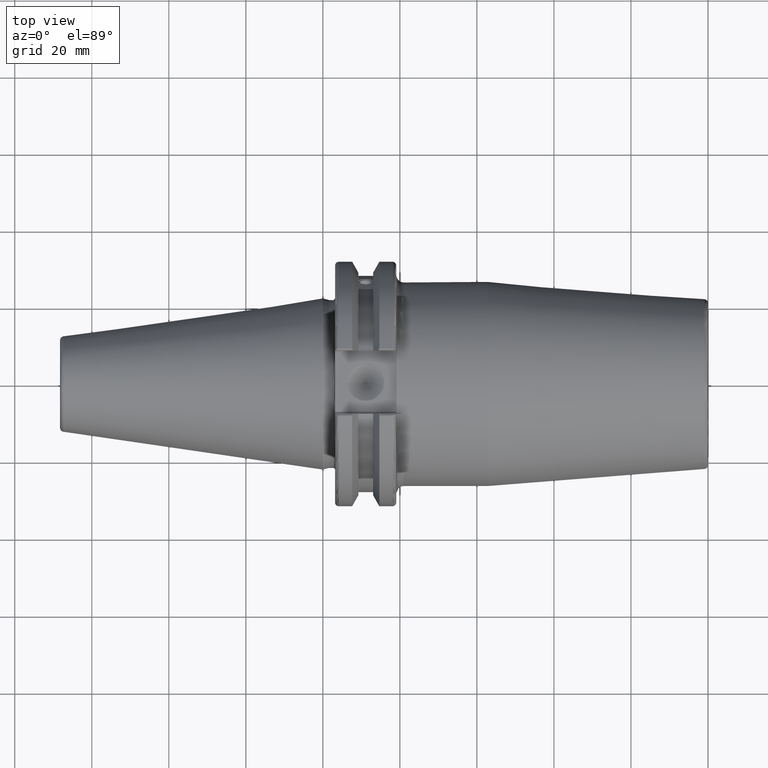
[diagram: clean part render]
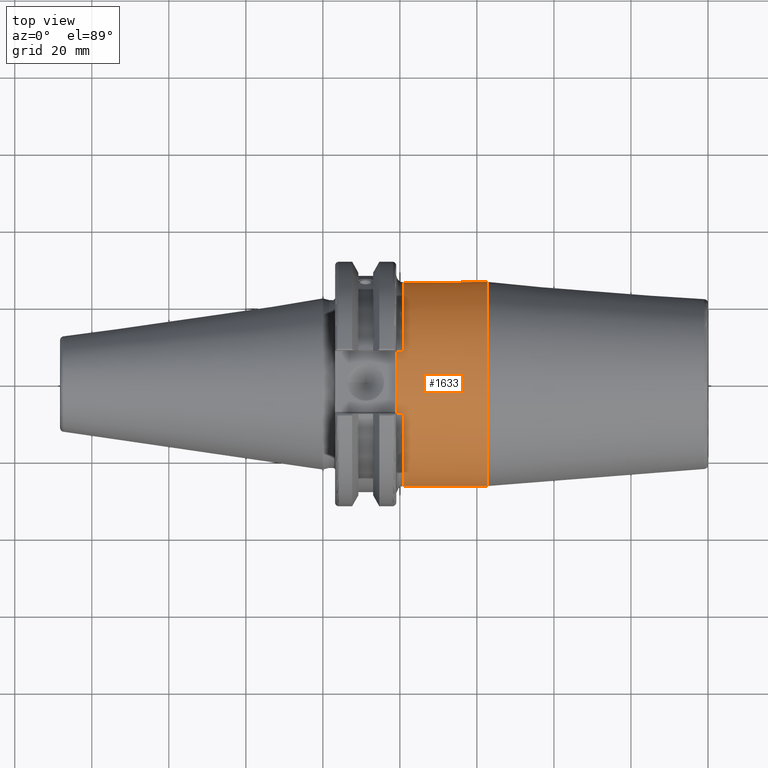
[diagram: same view with one face highlighted and labeled with its STEP entity id]
A machine part, top view. The second image highlights one B-rep face of the part: STEP entity #1633.
In plain terms, the highlighted cylindrical surface (bore or boss wall) has radius 26.5 mm, axis along (1, 0, 0).
Its self-contained STEP definition (entity closure, byte-faithful):
#82=LINE('',#2506,#184);
#83=LINE('',#2508,#185);
#84=LINE('',#2512,#186);
#85=LINE('',#2516,#187);
#86=LINE('',#2519,#188);
#184=VECTOR('',#1991,26.5);
#185=VECTOR('',#1992,10.);
#186=VECTOR('',#1995,10.);
#187=VECTOR('',#1998,10.);
#188=VECTOR('',#2001,10.);
#285=CYLINDRICAL_SURFACE('',#1767,26.5);
#400=FACE_OUTER_BOUND('',#499,.T.);
#499=EDGE_LOOP('',(#1137,#1138,#1139,#1140,#1141,#1142,#1143,#1144,#1145,
#1146,#1147,#1148));
#612=CIRCLE('',#1762,26.5);
#614=CIRCLE('',#1765,26.5);
#615=CIRCLE('',#1766,26.5);
#616=CIRCLE('',#1768,26.5);
#617=CIRCLE('',#1769,26.5);
#618=CIRCLE('',#1770,26.5);
#693=VERTEX_POINT('',#2468);
#697=VERTEX_POINT('',#2484);
#698=VERTEX_POINT('',#2495);
#699=VERTEX_POINT('',#2497);
#700=VERTEX_POINT('',#2507);
#701=VERTEX_POINT('',#2509);
#702=VERTEX_POINT('',#2511);
#703=VERTEX_POINT('',#2513);
#704=VERTEX_POINT('',#2515);
#705=VERTEX_POINT('',#2517);
#865=EDGE_CURVE('',#693,#693,#612,.T.);
#869=EDGE_CURVE('',#697,#698,#614,.T.);
#870=EDGE_CURVE('',#698,#699,#615,.T.);
#872=EDGE_CURVE('',#693,#698,#82,.T.);
#873=EDGE_CURVE('',#697,#700,#83,.T.);
#874=EDGE_CURVE('',#700,#701,#616,.T.);
#875=EDGE_CURVE('',#701,#702,#84,.T.);
#876=EDGE_CURVE('',#703,#702,#617,.T.);
#877=EDGE_CURVE('',#703,#704,#85,.T.);
#878=EDGE_CURVE('',#704,#705,#618,.T.);
#879=EDGE_CURVE('',#705,#699,#86,.T.);
#1137=ORIENTED_EDGE('',*,*,#865,.F.);
#1138=ORIENTED_EDGE('',*,*,#872,.T.);
#1139=ORIENTED_EDGE('',*,*,#869,.F.);
#1140=ORIENTED_EDGE('',*,*,#873,.T.);
#1141=ORIENTED_EDGE('',*,*,#874,.T.);
#1142=ORIENTED_EDGE('',*,*,#875,.T.);
#1143=ORIENTED_EDGE('',*,*,#876,.F.);
#1144=ORIENTED_EDGE('',*,*,#877,.T.);
#1145=ORIENTED_EDGE('',*,*,#878,.T.);
#1146=ORIENTED_EDGE('',*,*,#879,.T.);
#1147=ORIENTED_EDGE('',*,*,#870,.F.);
#1148=ORIENTED_EDGE('',*,*,#872,.F.);
#1633=ADVANCED_FACE('',(#400),#285,.T.);
#1762=AXIS2_PLACEMENT_3D('',#2470,#1979,#1980);
#1765=AXIS2_PLACEMENT_3D('',#2496,#1985,#1986);
#1766=AXIS2_PLACEMENT_3D('',#2498,#1987,#1988);
#1767=AXIS2_PLACEMENT_3D('',#2505,#1989,#1990);
#1768=AXIS2_PLACEMENT_3D('',#2510,#1993,#1994);
#1769=AXIS2_PLACEMENT_3D('',#2514,#1996,#1997);
#1770=AXIS2_PLACEMENT_3D('',#2518,#1999,#2000);
#1979=DIRECTION('center_axis',(1.,0.,0.));
#1980=DIRECTION('ref_axis',(0.,0.,-1.));
#1985=DIRECTION('center_axis',(-1.,0.,0.));
#1986=DIRECTION('ref_axis',(0.,-0.999990043367962,0.00446241693951007));
#1987=DIRECTION('center_axis',(-1.,0.,0.));
#1988=DIRECTION('ref_axis',(0.,-0.999990043367962,0.00446241693951007));
#1989=DIRECTION('center_axis',(1.,0.,0.));
#1990=DIRECTION('ref_axis',(0.,1.,0.));
#1991=DIRECTION('',(-1.,0.,0.));
#1992=DIRECTION('',(-1.,0.,0.));
#1993=DIRECTION('center_axis',(1.,0.,0.));
#1994=DIRECTION('ref_axis',(0.,0.,-1.));
#1995=DIRECTION('',(1.,0.,0.));
#1996=DIRECTION('center_axis',(-1.,0.,0.));
#1997=DIRECTION('ref_axis',(0.,0.999990043367962,0.00446241693951042));
#1998=DIRECTION('',(-1.,0.,0.));
#1999=DIRECTION('center_axis',(1.,0.,0.));
#2000=DIRECTION('ref_axis',(0.,0.,-1.));
#2001=DIRECTION('',(1.,0.,0.));
#2468=CARTESIAN_POINT('',(42.8220786872141,-26.5,-3.24531401774049E-15));
#2470=CARTESIAN_POINT('Origin',(42.8220786872141,0.,0.));
#2484=CARTESIAN_POINT('',(21.05,-8.19,-25.2026566060009));
#2495=CARTESIAN_POINT('',(21.05,-26.5,-3.24531401774049E-15));
#2496=CARTESIAN_POINT('Origin',(21.05,0.,0.));
#2497=CARTESIAN_POINT('',(21.05,-7.96474653838019,25.2747465383802));
#2498=CARTESIAN_POINT('Origin',(21.05,0.,0.));
#2505=CARTESIAN_POINT('Origin',(30.936039343607,0.,0.));
#2506=CARTESIAN_POINT('',(30.936039343607,-26.5,-3.24531401774049E-15));
#2507=CARTESIAN_POINT('',(19.05,-8.19,-25.2026566060009));
#2508=CARTESIAN_POINT('',(30.936039343607,-8.19,-25.2026566060009));
#2509=CARTESIAN_POINT('',(19.05,8.19,-25.2026566060009));
#2510=CARTESIAN_POINT('Origin',(19.05,0.,0.));
#2511=CARTESIAN_POINT('',(21.05,8.19,-25.2026566060009));
#2512=CARTESIAN_POINT('',(30.936039343607,8.19,-25.2026566060009));
#2513=CARTESIAN_POINT('',(21.05,7.96474653838018,25.2747465383802));
#2514=CARTESIAN_POINT('Origin',(21.05,0.,0.));
#2515=CARTESIAN_POINT('',(19.05,7.96474653838018,25.2747465383802));
#2516=CARTESIAN_POINT('',(30.936039343607,7.96474653838018,25.2747465383802));
#2517=CARTESIAN_POINT('',(19.05,-7.96474653838018,25.2747465383802));
#2518=CARTESIAN_POINT('Origin',(19.05,0.,0.));
#2519=CARTESIAN_POINT('',(30.936039343607,-7.96474653838019,25.2747465383802));